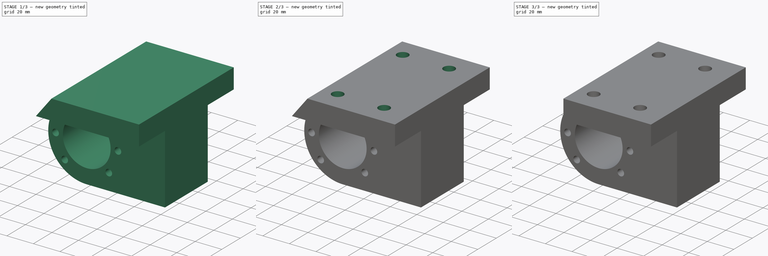
[diagram: build sequence overview — one tinted view per stage of 3, left to right]
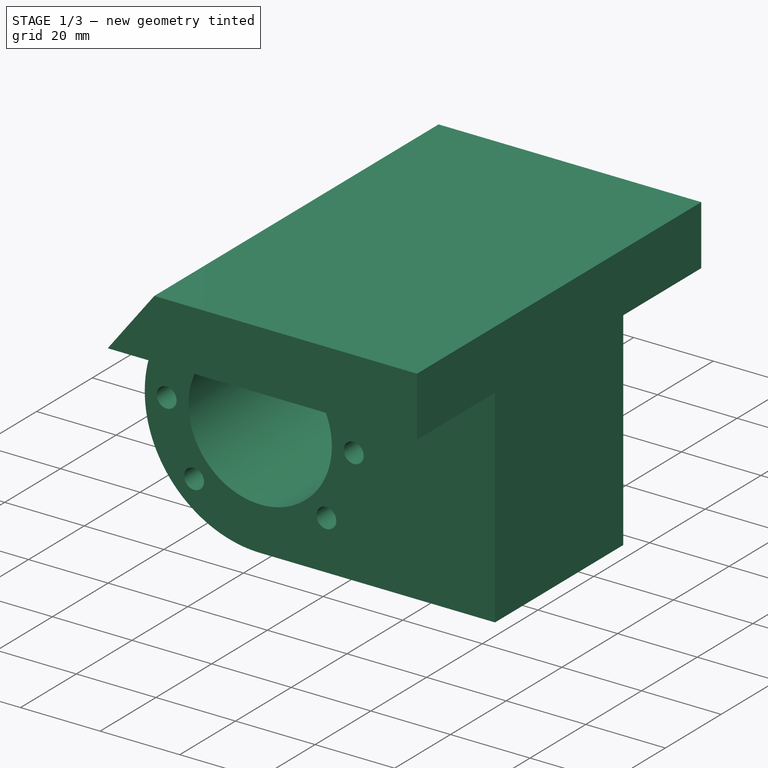
[diagram: stage 1 of 3 — iso view after this stage's code; geometry added in this stage tinted green]
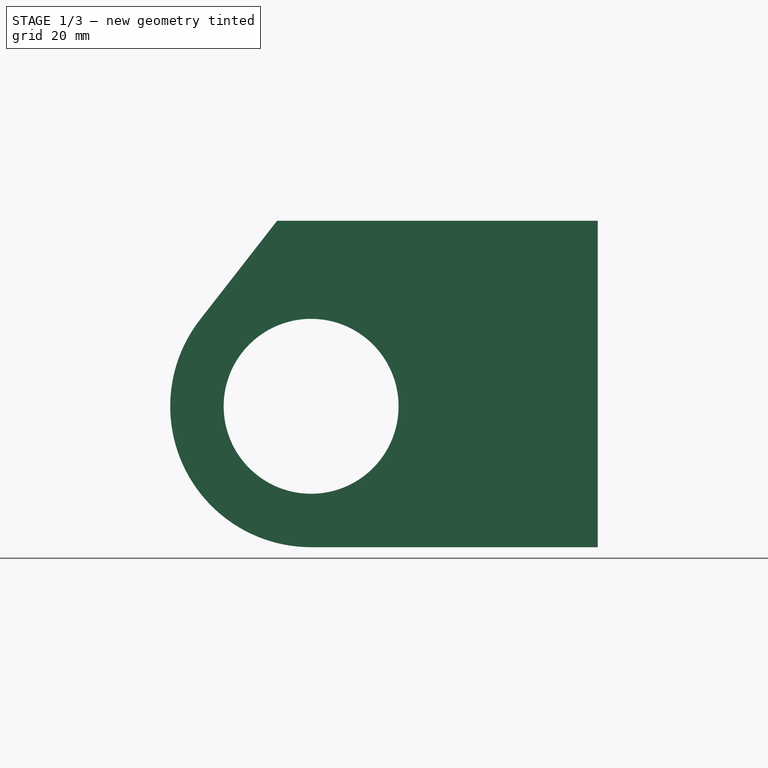
[diagram: stage 1 of 3 — front view after this stage's code; geometry added in this stage tinted green]
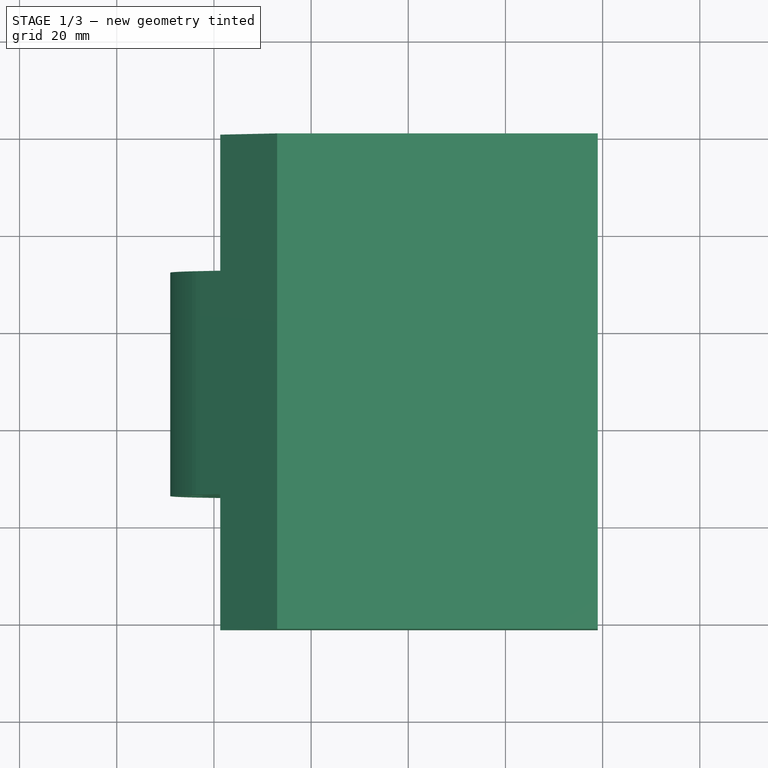
[diagram: stage 1 of 3 — top view after this stage's code; geometry added in this stage tinted green]
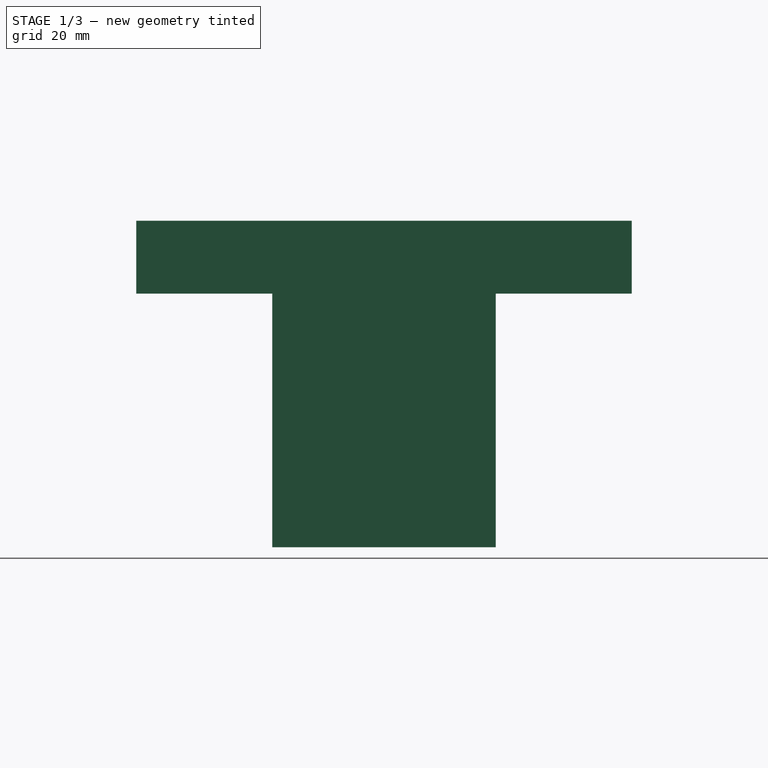
[diagram: stage 1 of 3 — right view after this stage's code; geometry added in this stage tinted green]
FCSTD DOCUMENT  (FreeCAD 0.20RUnknown)
Label: Spport ecrou
License: All rights reserved
LicenseURL: http://en.wikipedia.org/wiki/All_rights_reserved
objects: Sketcher::SketchObject×8, PartDesign::Pocket×6, PartDesign::Pad×2, PartDesign::Body×1
note: 25 computed .brp shape members not serialized (recipe doc carries the construction recipe); baked Part::Feature solids carry a one-line shape summary decoded from their .brp

FEATURE [Sketcher::SketchObject] Sketch
  FullyConstrained = false
  MapMode = 5
  Placement = pos=(0,0,0) rot=(1,0,0;1.5708rad)
  Support = -> [XZ_Plane]
  sketch-geometry (6):
    g0: Circle CenterX=0 CenterY=0 CenterZ=0 NormalX=0 NormalY=0 NormalZ=1 AngleXU=0 Radius=18
    g1: ArcOfCircle CenterX=0 CenterY=0 CenterZ=0 NormalX=0 NormalY=0 NormalZ=1 AngleXU=0 Radius=29 StartAngle=2.47922 EndAngle=4.71235
    g2: LineSegment StartX=-0.00124786 StartY=-29 StartZ=0 EndX=59 EndY=-29 EndZ=0
    g3: LineSegment StartX=-22.8676 StartY=17.8347 StartZ=0 EndX=-7 EndY=38.18 EndZ=0
    g4: LineSegment StartX=-7 StartY=38.18 StartZ=0 EndX=59 EndY=38.18 EndZ=0
    g5: LineSegment StartX=59 StartY=38.18 StartZ=0 EndX=59 EndY=-29 EndZ=0
  constraints (15):
    c: Coincident(g0,g-1)
    c: Coincident(g1,g0)
    c: Diameter(g1) = 58
    c: Diameter(g0) = 36
    c: Horizontal(g2)
    c: Coincident(g4,g3)
    c: Horizontal(g4)
    c: Coincident(g5,g4)
    c: Vertical(g5)
    c: Coincident(g2,g5)
    c: Coincident(g1,g2)
    c: Tangent(g1,g3) = 1.5708
    c: DistanceY(g0,g3) = 38.18
    c: DistanceX(g0,g2) = 59
    c: DistanceX(g4,g4) = 66
FEATURE [PartDesign::Pad] Pad
  Direction = (0,-1,2e-16)
  Length = 102
  Length2 = 10
  Placement = pos=(0,0,0) rot=(1,0,0;1.5708rad)
  Profile = -> Sketch
  ReferenceAxis = -> Sketch [N_Axis]
  Type = 0
FEATURE [Sketcher::SketchObject] Sketch001
  FullyConstrained = true
  MapMode = 5
  Placement = pos=(0,-102,4.51e-14) rot=(1,0,0;1.5708rad)
  Support = -> [Pad]
  sketch-geometry (13):
    g0: Circle CenterX=0 CenterY=0 CenterZ=0 NormalX=0 NormalY=0 NormalZ=1 AngleXU=0 Radius=23.5
    g1: LineSegment StartX=0 StartY=0 StartZ=0 EndX=-16.617 EndY=16.617 EndZ=0
    g2: LineSegment StartX=0 StartY=0 StartZ=0 EndX=-23.5 EndY=0 EndZ=0
    g3: LineSegment StartX=0 StartY=0 StartZ=0 EndX=-16.617 EndY=-16.617 EndZ=0
    g4: LineSegment StartX=0 StartY=0 StartZ=0 EndX=16.617 EndY=16.617 EndZ=0
    g5: LineSegment StartX=0 StartY=0 StartZ=0 EndX=23.5 EndY=0 EndZ=0
    g6: LineSegment StartX=0 StartY=0 StartZ=0 EndX=16.617 EndY=-16.617 EndZ=0
    g7: Circle CenterX=-16.617 CenterY=16.617 CenterZ=0 NormalX=0 NormalY=0 NormalZ=1 AngleXU=0 Radius=2.5
    g8: Circle CenterX=-23.5 CenterY=0 CenterZ=0 NormalX=0 NormalY=0 NormalZ=1 AngleXU=0 Radius=2.5
    g9: Circle CenterX=-16.617 CenterY=-16.617 CenterZ=0 NormalX=0 NormalY=0 NormalZ=1 AngleXU=0 Radius=2.5
    g10: Circle CenterX=16.617 CenterY=-16.617 CenterZ=0 NormalX=0 NormalY=0 NormalZ=1 AngleXU=0 Radius=2.5
    g11: Circle CenterX=23.5 CenterY=0 CenterZ=0 NormalX=0 NormalY=0 NormalZ=1 AngleXU=0 Radius=2.5
    g12: Circle CenterX=16.617 CenterY=16.617 CenterZ=0 NormalX=0 NormalY=0 NormalZ=1 AngleXU=0 Radius=2.5
  constraints (32):
    c: Coincident(g0,g-1)
    c: Diameter(g0) = 47
    c: Coincident(g1,g0)
    c: PointOnObject(g1,g0)
    c: Coincident(g2,g0)
    c: PointOnObject(g2,g0)
    c: Horizontal(g2)
    c: Coincident(g3,g0)
    c: PointOnObject(g3,g0)
    c: Coincident(g4,g0)
    c: PointOnObject(g4,g0)
    c: Coincident(g5,g0)
    c: PointOnObject(g5,g0)
    c: Horizontal(g5)
    c: Coincident(g6,g0)
    c: PointOnObject(g6,g0)
    c: Angle(g1,g2) = 0.785398
    c: Parallel(g6,g1)
    c: Parallel(g4,g3)
    c: Perpendicular(g1,g4)
    c: Coincident(g7,g1)
    c: Coincident(g8,g2)
    c: Coincident(g9,g3)
    c: Coincident(g10,g6)
    c: Coincident(g11,g5)
    c: Coincident(g12,g4)
    c: Equal(g12,g11)
    c: Equal(g11,g10)
    c: Equal(g10,g9)
    c: Equal(g8,g9)
    c: Equal(g8,g7)
    c: Diameter(g7) = 5
FEATURE [PartDesign::Pocket] Pocket
  BaseFeature = -> Pad
  Direction = (0,1,-2e-16)
  Length = 60
  Length2 = 5
  Placement = pos=(0,0,0) rot=(1,0,0;1.5708rad)
  Profile = -> Sketch001
  ReferenceAxis = -> Sketch001 [N_Axis]
  Type = 0
FEATURE [Sketcher::SketchObject] Sketch002
  ExternalGeometry = -> [Pocket]
  FullyConstrained = true
  MapMode = 5
  Placement = pos=(59,0,0) rot=(0.707107,0,0.707107;3.14159rad)
  Support = -> [Pocket]
  sketch-geometry (8):
    g0: LineSegment StartX=-29 StartY=102 StartZ=0 EndX=23.18 EndY=102 EndZ=0
    g1: LineSegment StartX=23.18 StartY=102 StartZ=0 EndX=23.18 EndY=74 EndZ=0
    g2: LineSegment StartX=23.18 StartY=74 StartZ=0 EndX=-29 EndY=74 EndZ=0
    g3: LineSegment StartX=-29 StartY=74 StartZ=0 EndX=-29 EndY=102 EndZ=0
    g4: LineSegment StartX=-29 StartY=6.2e-15 StartZ=0 EndX=23.18 EndY=6.2e-15 EndZ=0
    g5: LineSegment StartX=23.18 StartY=6.2e-15 StartZ=0 EndX=23.18 EndY=28 EndZ=0
    g6: LineSegment StartX=23.18 StartY=28 StartZ=0 EndX=-29 EndY=28 EndZ=0
    g7: LineSegment StartX=-29 StartY=28 StartZ=0 EndX=-29 EndY=7.1e-15 EndZ=0
  constraints (22):
    c: Coincident(g0,g1)
    c: Coincident(g1,g2)
    c: Coincident(g2,g3)
    c: Coincident(g3,g0)
    c: Horizontal(g0)
    c: Horizontal(g2)
    c: Vertical(g1)
    c: Vertical(g3)
    c: Coincident(g0,g-4)
    c: Coincident(g4,g5)
    c: Coincident(g5,g6)
    c: Coincident(g6,g7)
    c: Coincident(g7,g4)
    c: Horizontal(g4)
    c: Horizontal(g6)
    c: Vertical(g5)
    c: Vertical(g7)
    c: Coincident(g4,g-6)
    c: DistanceY(g1,g1) = 28
    c: DistanceY(g5,g5) = 28
    c: DistanceX(g0,g-5) = 15
    c: DistanceX(g4,g-6) = 15
FEATURE [PartDesign::Pocket] Pocket001
  BaseFeature = -> Pocket
  Direction = (-1,0,2e-16)
  Length = 5
  Length2 = 5
  Placement = pos=(0,0,0) rot=(1,0,0;1.5708rad)
  Profile = -> Sketch002
  ReferenceAxis = -> Sketch002 [N_Axis]
  Type = 1
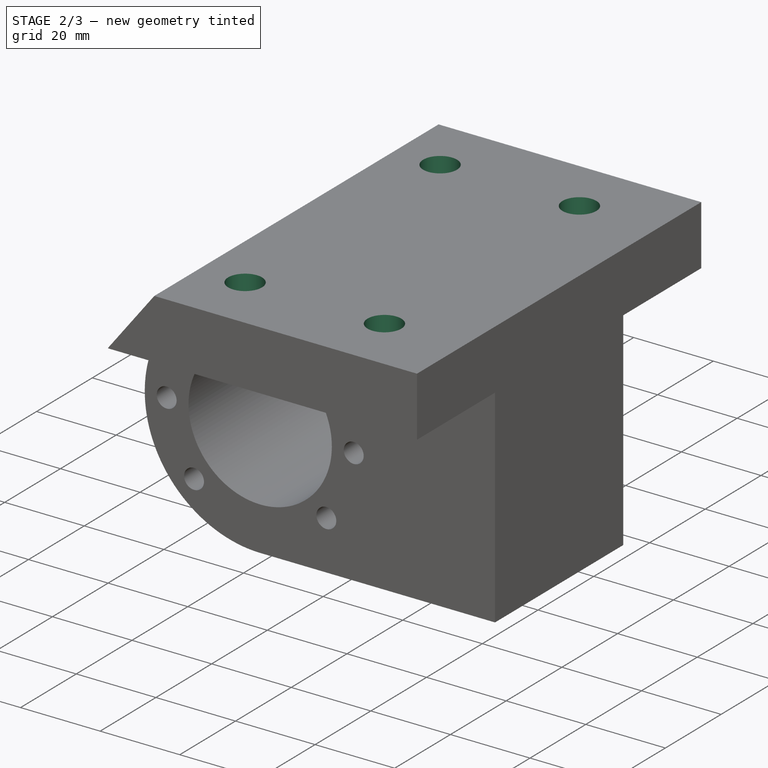
[diagram: stage 2 of 3 — iso view after this stage's code; geometry added in this stage tinted green]
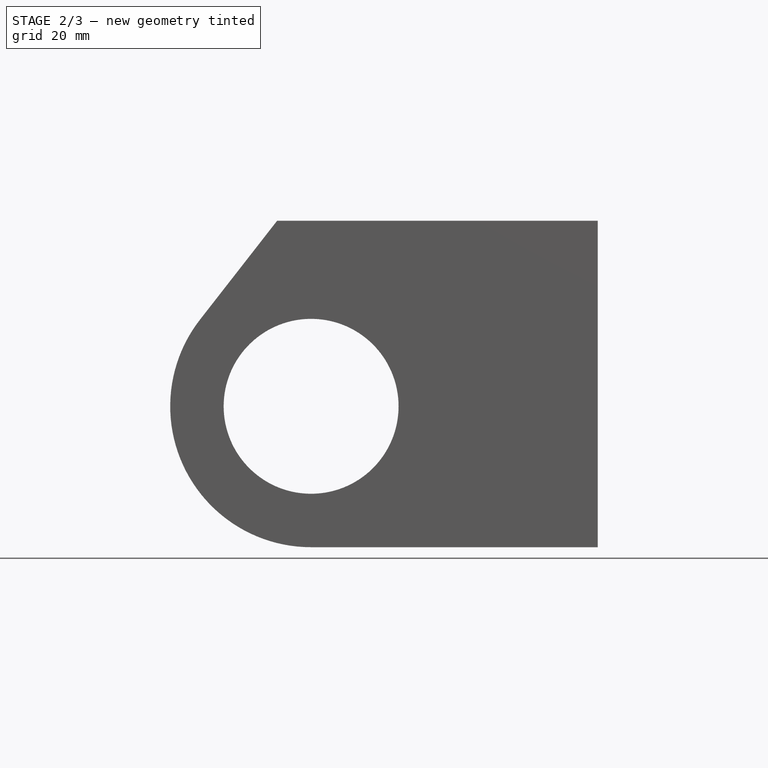
[diagram: stage 2 of 3 — front view after this stage's code; geometry added in this stage tinted green]
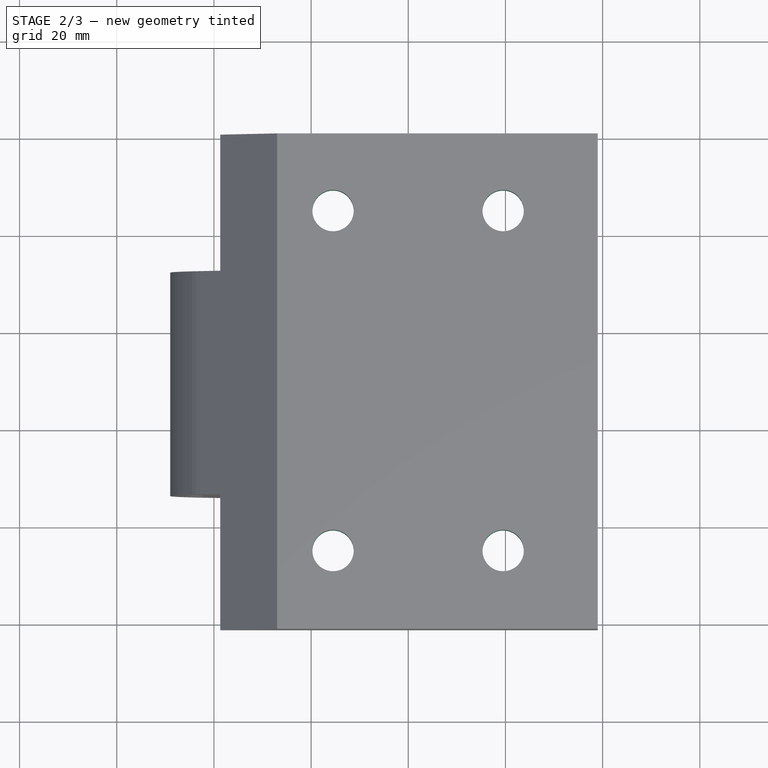
[diagram: stage 2 of 3 — top view after this stage's code; geometry added in this stage tinted green]
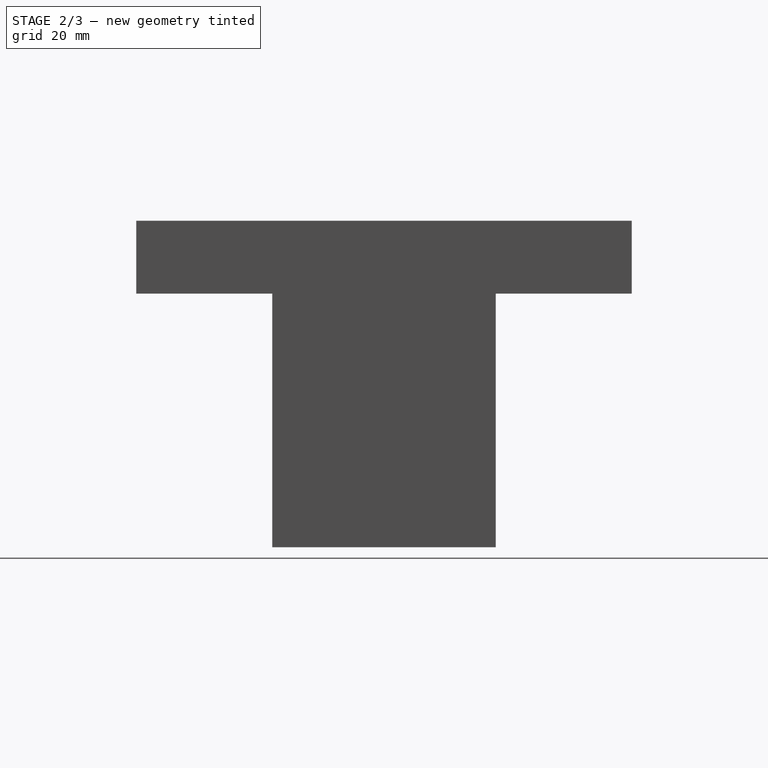
[diagram: stage 2 of 3 — right view after this stage's code; geometry added in this stage tinted green]
FEATURE [Sketcher::SketchObject] Sketch003
  FullyConstrained = false
  MapMode = 5
  Placement = pos=(0,2.53e-14,38.18) rot=(0,0,1;3.14159rad)
  Support = -> [Pocket001]
  sketch-geometry (8):
    g0: LineSegment StartX=-39.5285 StartY=85.8655 StartZ=0 EndX=-4.51848 EndY=85.8655 EndZ=0
    g1: LineSegment StartX=-4.51848 StartY=85.8655 StartZ=0 EndX=-4.51848 EndY=15.8955 EndZ=0
    g2: LineSegment StartX=-4.51848 StartY=15.8955 StartZ=0 EndX=-39.5285 EndY=15.8955 EndZ=0
    g3: LineSegment StartX=-39.5285 StartY=15.8955 StartZ=0 EndX=-39.5285 EndY=85.8655 EndZ=0
    g4: Circle CenterX=-39.5285 CenterY=85.8655 CenterZ=0 NormalX=0 NormalY=0 NormalZ=1 AngleXU=0 Radius=4.25
    g5: Circle CenterX=-4.51848 CenterY=85.8655 CenterZ=0 NormalX=0 NormalY=0 NormalZ=1 AngleXU=0 Radius=4.25
    g6: Circle CenterX=-39.5285 CenterY=15.8955 CenterZ=0 NormalX=0 NormalY=0 NormalZ=1 AngleXU=0 Radius=4.25
    g7: Circle CenterX=-4.51848 CenterY=15.8955 CenterZ=0 NormalX=0 NormalY=0 NormalZ=1 AngleXU=0 Radius=4.25
  constraints (18):
    c: Coincident(g0,g1)
    c: Coincident(g1,g2)
    c: Coincident(g2,g3)
    c: Coincident(g3,g0)
    c: Horizontal(g0)
    c: Horizontal(g2)
    c: Vertical(g1)
    c: Vertical(g3)
    c: Coincident(g4,g0)
    c: Coincident(g5,g0)
    c: Coincident(g6,g2)
    c: Coincident(g7,g1)
    c: Equal(g4,g5)
    c: Equal(g6,g7)
    c: Equal(g7,g5)
    c: Diameter(g4) = 8.5
    c: DistanceY(g3,g3) = 69.97
    c: DistanceX(g0,g0) = 35.01
FEATURE [PartDesign::Pocket] Pocket002
  BaseFeature = -> Pocket001
  Direction = (0,-2e-16,-1)
  Length = 5
  Length2 = 5
  Placement = pos=(0,0,0) rot=(1,0,0;1.5708rad)
  Profile = -> Sketch003
  ReferenceAxis = -> Sketch003 [N_Axis]
  Type = 1
FEATURE [Sketcher::SketchObject] Sketch004
  ExternalGeometry = -> [Pocket002]
  FullyConstrained = true
  MapMode = 5
  Placement = pos=(5.1e-15,1.02e-14,23.18) rot=(1,0,0;3.14159rad)
  Support = -> [Pocket002]
  sketch-geometry (4):
    g0: Circle CenterX=4.51848 CenterY=85.8655 CenterZ=0 NormalX=0 NormalY=0 NormalZ=1 AngleXU=0 Radius=6.8
    g1: Circle CenterX=39.5285 CenterY=85.8655 CenterZ=0 NormalX=0 NormalY=0 NormalZ=1 AngleXU=0 Radius=6.8
    g2: Circle CenterX=39.5285 CenterY=15.8955 CenterZ=0 NormalX=0 NormalY=0 NormalZ=1 AngleXU=0 Radius=6.8
    g3: Circle CenterX=4.51848 CenterY=15.8955 CenterZ=0 NormalX=0 NormalY=0 NormalZ=1 AngleXU=0 Radius=6.8
  constraints (8):
    c: Coincident(g0,g-3)
    c: Coincident(g1,g-4)
    c: Coincident(g2,g-5)
    c: Coincident(g3,g-6)
    c: Equal(g0,g1)
    c: Equal(g1,g2)
    c: Equal(g2,g3)
    c: Diameter(g1) = 13.6
FEATURE [PartDesign::Pocket] Pocket003
  BaseFeature = -> Pocket002
  Direction = (2e-16,0,1)
  Length = 6.3
  Length2 = 5
  Placement = pos=(0,0,0) rot=(1,0,0;1.5708rad)
  Profile = -> Sketch004
  ReferenceAxis = -> Sketch004 [N_Axis]
  Type = 0
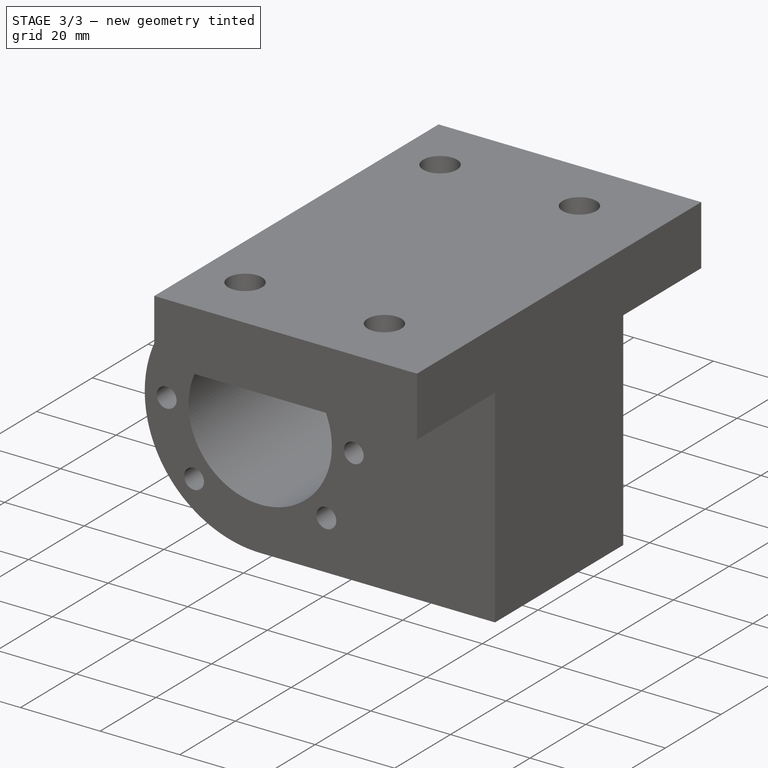
[diagram: stage 3 of 3 — iso view after this stage's code; geometry added in this stage tinted green]
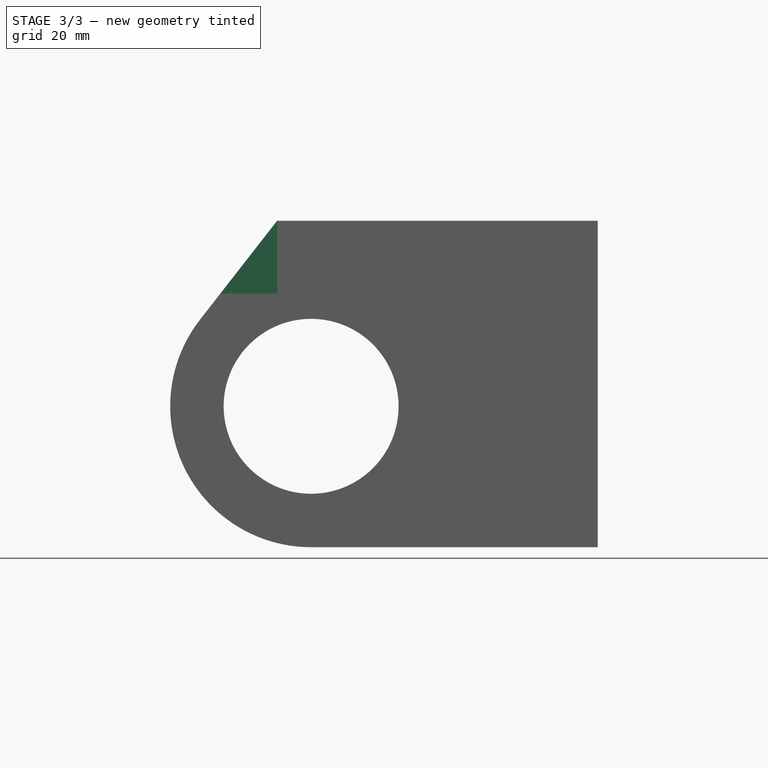
[diagram: stage 3 of 3 — front view after this stage's code; geometry added in this stage tinted green]
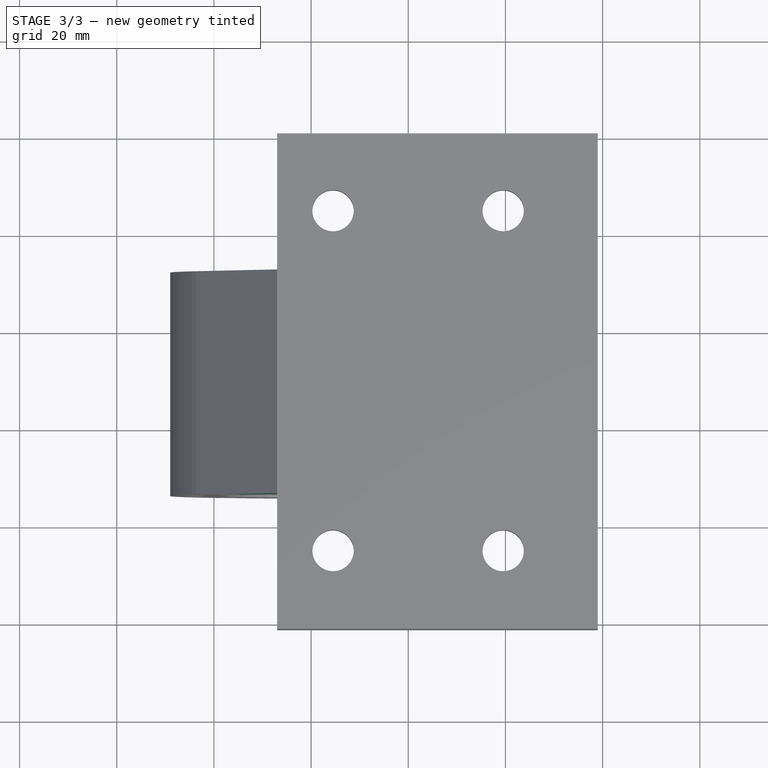
[diagram: stage 3 of 3 — top view after this stage's code; geometry added in this stage tinted green]
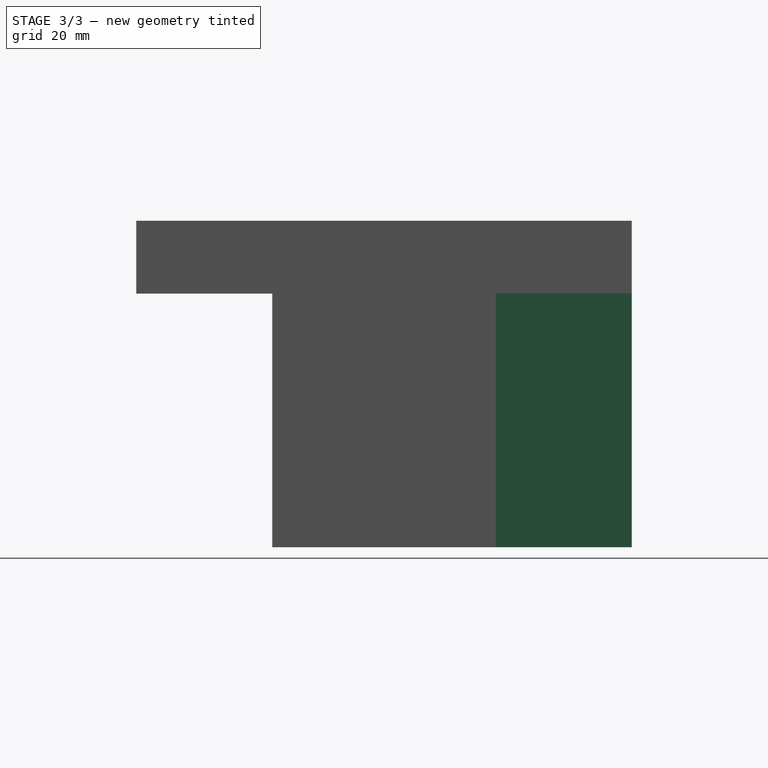
[diagram: stage 3 of 3 — right view after this stage's code; geometry added in this stage tinted green]
FEATURE [Sketcher::SketchObject] Sketch005
  ExternalGeometry = -> [Pocket003]
  FullyConstrained = true
  MapMode = 5
  Placement = pos=(0,-102,4.51e-14) rot=(1,0,0;1.5708rad)
  Support = -> [Pocket003]
  sketch-geometry (4):
    g0: LineSegment StartX=-7 StartY=38.18 StartZ=0 EndX=-18.6987 EndY=38.18 EndZ=0
    g1: LineSegment StartX=-18.6987 StartY=38.18 StartZ=0 EndX=-18.6987 EndY=23.18 EndZ=0
    g2: LineSegment StartX=-18.6987 StartY=23.18 StartZ=0 EndX=-7 EndY=23.18 EndZ=0
    g3: LineSegment StartX=-7 StartY=23.18 StartZ=0 EndX=-7 EndY=38.18 EndZ=0
  constraints (10):
    c: Coincident(g0,g1)
    c: Coincident(g1,g2)
    c: Coincident(g2,g3)
    c: Coincident(g3,g0)
    c: Horizontal(g0)
    c: Horizontal(g2)
    c: Vertical(g1)
    c: Vertical(g3)
    c: Coincident(g0,g-3)
    c: Coincident(g1,g-3)
FEATURE [PartDesign::Pocket] Pocket004
  BaseFeature = -> Pocket003
  Direction = (0,1,-2e-16)
  Length = 0
  Length2 = 5
  Placement = pos=(0,0,0) rot=(1,0,0;1.5708rad)
  Profile = -> Sketch005
  ReferenceAxis = -> Sketch005 [N_Axis]
  Type = 3
  UpToFace = -> Pocket003 [Face4]
FEATURE [Sketcher::SketchObject] Sketch006
  ExternalGeometry = -> [Pocket004]
  FullyConstrained = true
  MapMode = 5
  Placement = pos=(0,0,0) rot=(-1,0,0;1.5708rad)
  Support = -> [Pocket004]
  sketch-geometry (4):
    g0: LineSegment StartX=-18.6987 StartY=-23.18 StartZ=0 EndX=-7 EndY=-23.18 EndZ=0
    g1: LineSegment StartX=-7 StartY=-23.18 StartZ=0 EndX=-7 EndY=-38.18 EndZ=0
    g2: LineSegment StartX=-7 StartY=-38.18 StartZ=0 EndX=-18.6987 EndY=-38.18 EndZ=0
    g3: LineSegment StartX=-18.6987 StartY=-38.18 StartZ=0 EndX=-18.6987 EndY=-23.18 EndZ=0
  constraints (10):
    c: Coincident(g0,g1)
    c: Coincident(g1,g2)
    c: Coincident(g2,g3)
    c: Coincident(g3,g0)
    c: Horizontal(g0)
    c: Horizontal(g2)
    c: Vertical(g1)
    c: Vertical(g3)
    c: Coincident(g0,g-3)
    c: Coincident(g1,g-3)
FEATURE [PartDesign::Pocket] Pocket005
  BaseFeature = -> Pocket004
  Direction = (0,-1,2e-16)
  Length = 0
  Length2 = 5
  Placement = pos=(0,0,0) rot=(1,0,0;1.5708rad)
  Profile = -> Sketch006
  ReferenceAxis = -> Sketch006 [N_Axis]
  Type = 3
  UpToFace = -> Pocket004 [Face2]
FEATURE [Sketcher::SketchObject] Sketch007
  ExternalGeometry = -> [Pocket005]
  FullyConstrained = true
  MapMode = 5
  Placement = pos=(0,-28,1.24e-14) rot=(-1,0,0;1.5708rad)
  Support = -> [Pocket005]
  sketch-geometry (4):
    g0: LineSegment StartX=18 StartY=29 StartZ=0 EndX=31 EndY=29 EndZ=0
    g1: LineSegment StartX=31 StartY=29 StartZ=0 EndX=31 EndY=-23.18 EndZ=0
    g2: LineSegment StartX=31 StartY=-23.18 StartZ=0 EndX=18 EndY=-23.18 EndZ=0
    g3: LineSegment StartX=18 StartY=-23.18 StartZ=0 EndX=18 EndY=29 EndZ=0
  constraints (11):
    c: Coincident(g0,g1)
    c: Coincident(g1,g2)
    c: Coincident(g2,g3)
    c: Coincident(g3,g0)
    c: Horizontal(g2)
    c: Vertical(g1)
    c: Vertical(g3)
    c: PointOnObject(g1,g-4)
    c: Tangent(g3,g-3)
    c: Tangent(g0,g-5)
    c: DistanceX(g0,g0) = 13
FEATURE [PartDesign::Pad] Pad001
  BaseFeature = -> Pocket005
  Direction = (0,1,2e-16)
  Length = 10
  Length2 = 10
  Placement = pos=(0,0,0) rot=(1,0,0;1.5708rad)
  Profile = -> Sketch007
  ReferenceAxis = -> Sketch007 [N_Axis]
  Type = 3
  UpToFace = -> Pocket005 [Face19]
FEATURE [PartDesign::Body] Body
  Group = -> [Sketch,Pad,Sketch001,Pocket,Sketch002,Pocket001,Sketch003,Pocket002,Sketch004,Pocket003,Sketch005,Pocket004,Sketch006,Pocket005,Sketch007,Pad001]
  Origin = -> Origin
  Tip = -> Pad001
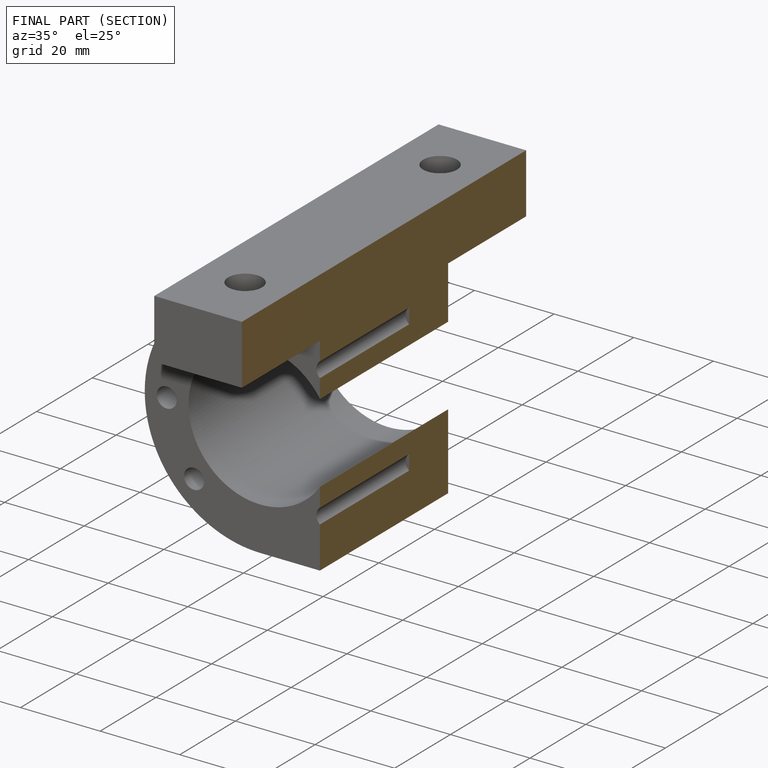
[diagram: finished part — half-section view (interior)]
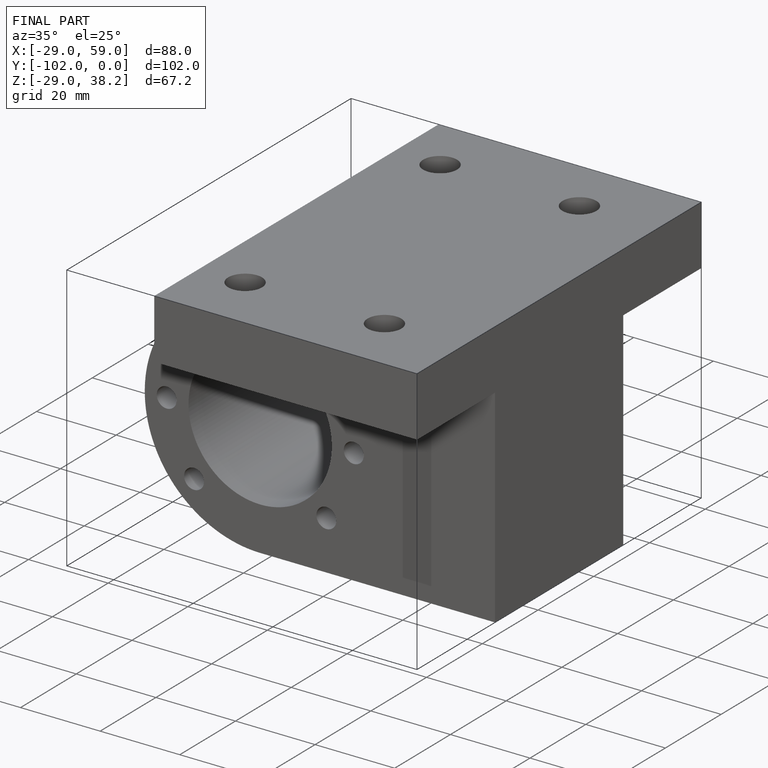
[diagram: finished part — iso view with bounding-box wireframe]
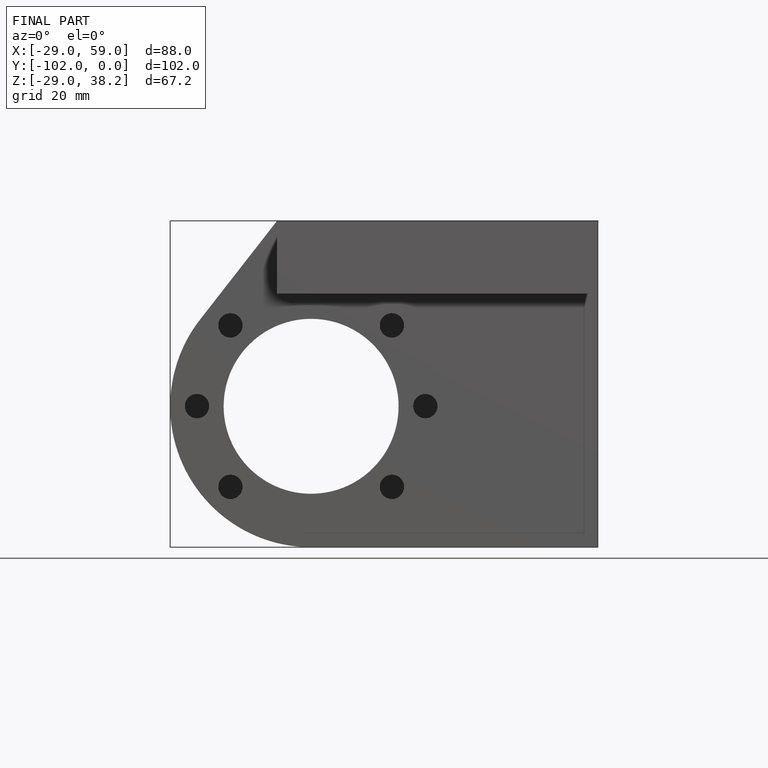
[diagram: finished part — front view with bounding-box wireframe]
